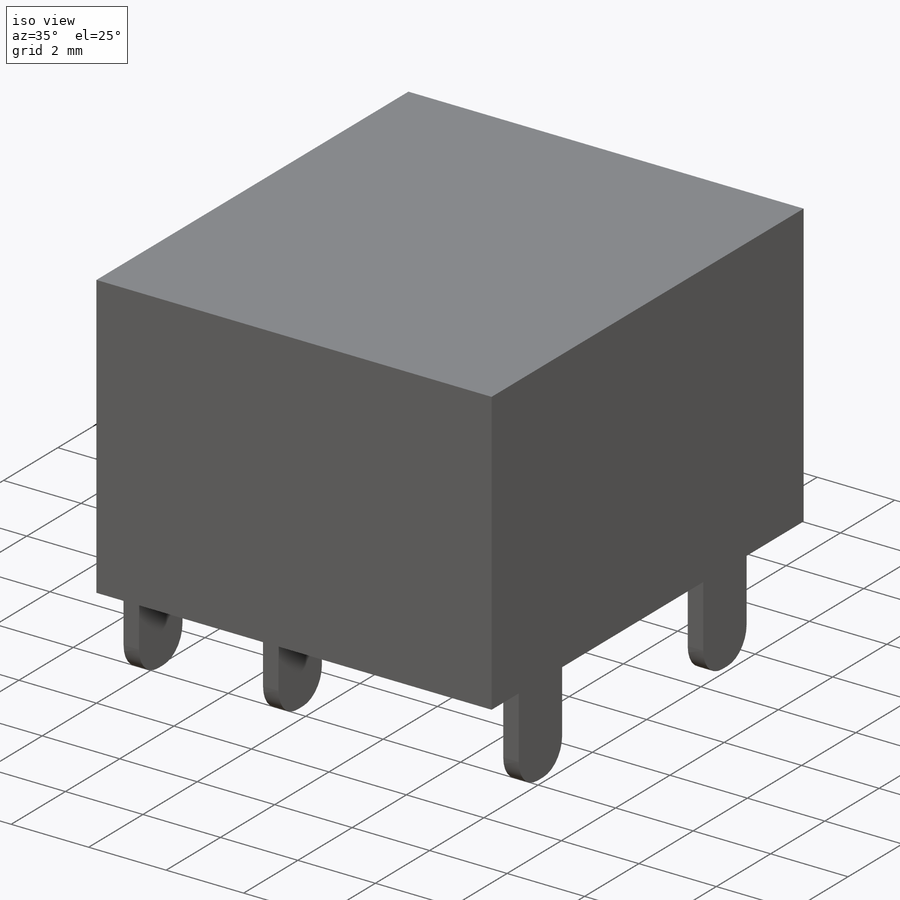
[diagram: iso view]
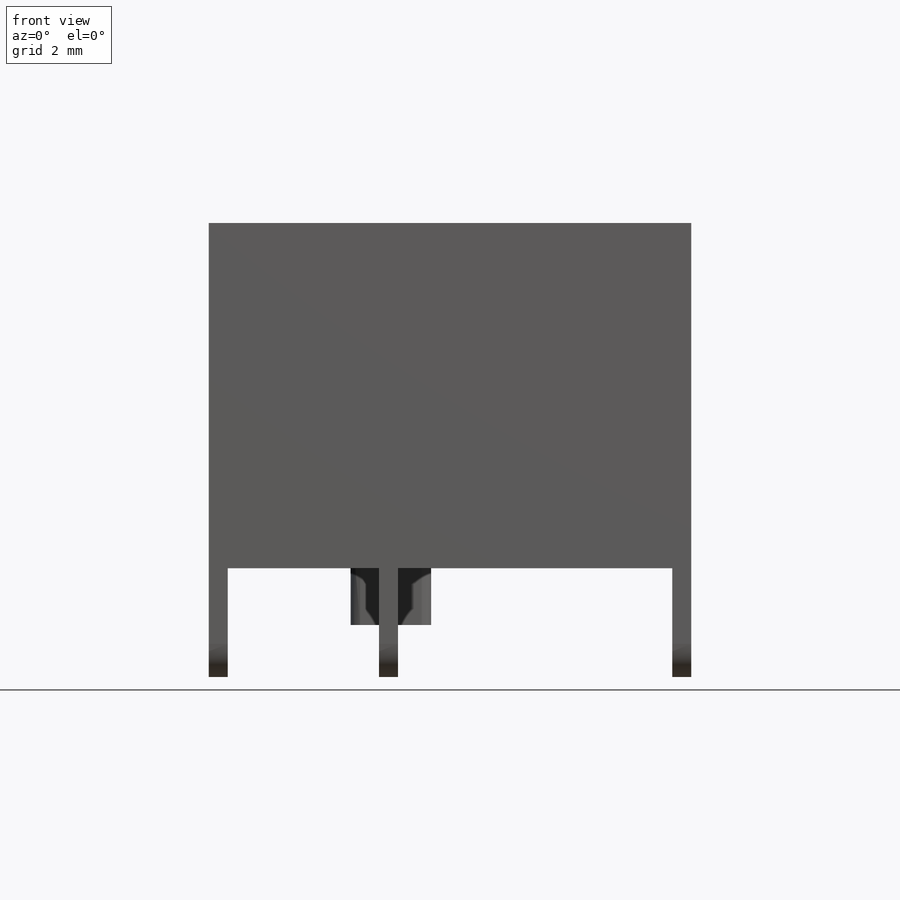
[diagram: front view]
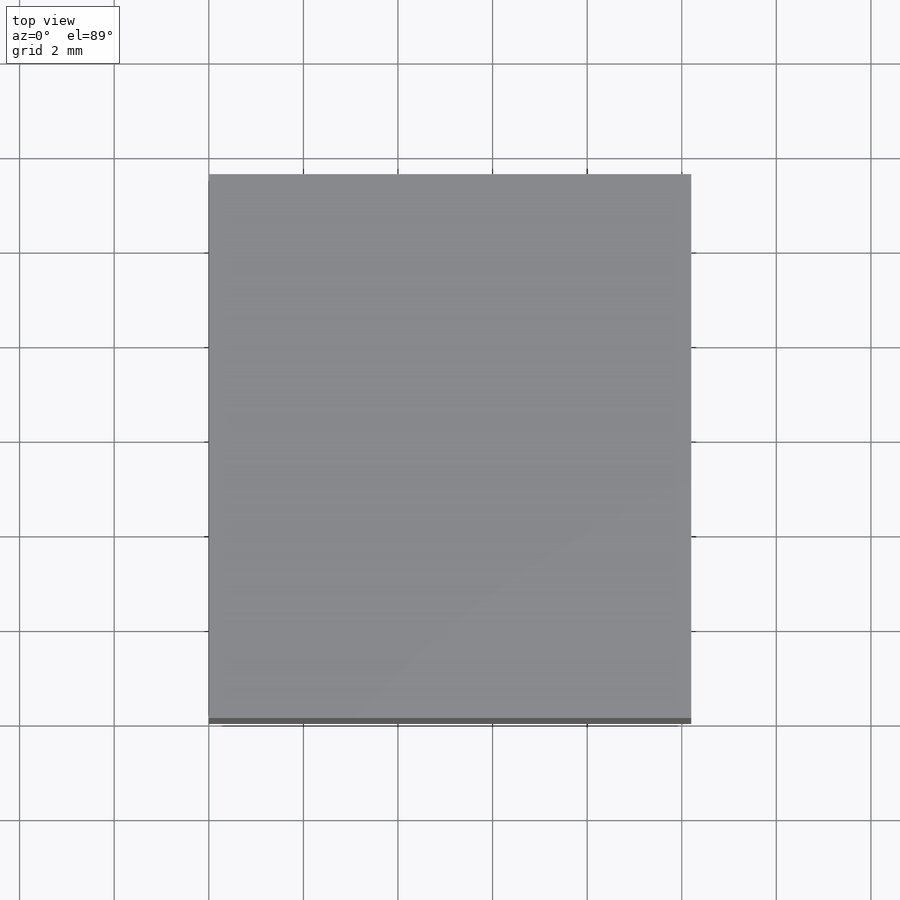
[diagram: top view]
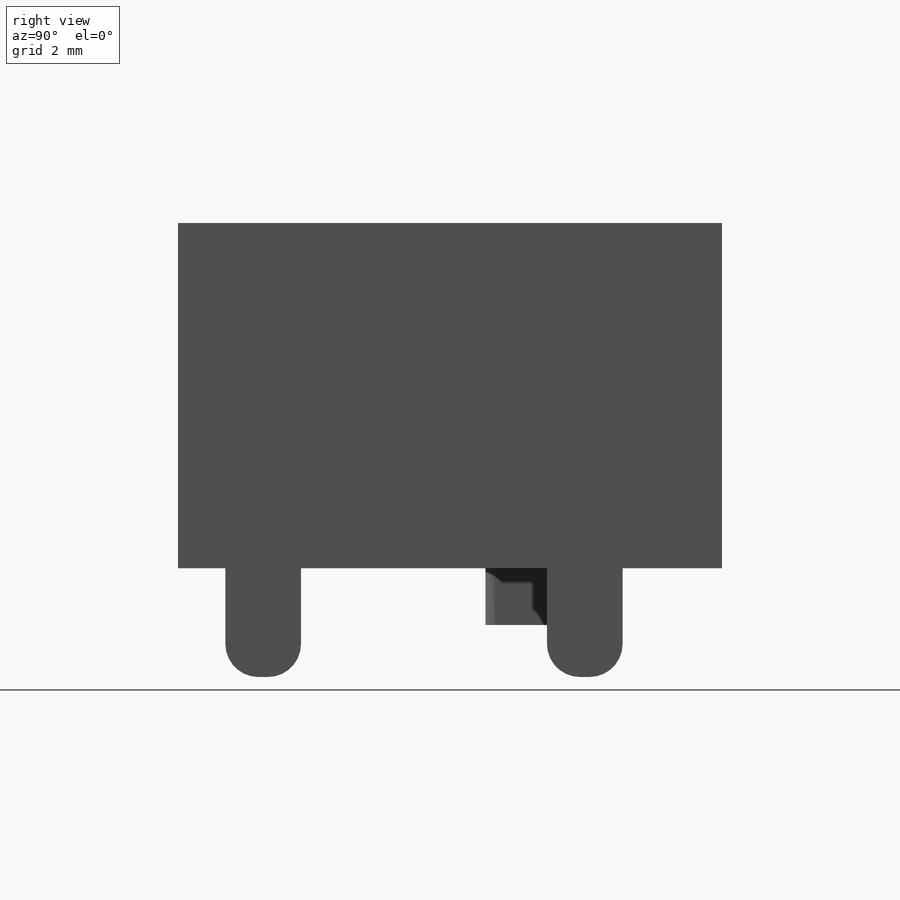
[diagram: right view]
SOLIDWORKS PART (.sldprt)
format: sldprt  version: not decoded by parser v0  size: 314,880 bytes
history: native  units: mm
features: fillet x8, sketch x4, extrude x3, material x1, cut_extrude x1 (+11 scaffold rows collapsed)
feature tree (28):
  scaffold x11  (default folders/planes/origin — collapsed)
  material  "Материал <не указан>"
  sketch  "Эскиз1"  dims[D1=11.5mm D2=7.3mm]
  extrude  "Бобышка-Вытянуть1"  Depth=10.2mm
  sketch  "Эскиз2"  dims[c1.D1=6.0mm c1.D2=6.0mm c1.D3=2.5mm c2.D2=4.0mm]
  cut_extrude  "Вырез-Вытянуть1"  Depth=8.3mm
  fillet  "Скругление1"  Radius=1.12mm
  sketch  "Эскиз3"  dims[D1=0.4mm D2=1.6mm D3=1.0mm D4=0.4mm D5=1.6mm D6=2.1mm D7=3.2mm D8=0.4mm D9=1.6mm D10=~1.014746mm]
  extrude  "Бобышка-Вытянуть2"  Depth=2.3mm
  fillet  "Скругление2"  Radius=0.7mm
  fillet  "Скругление3"  Radius=0.7mm
  fillet  "Скругление4"  Radius=0.7mm
  fillet  "Скругление5"  Radius=0.7mm
  fillet  "Скругление6"  Radius=0.7mm
  sketch  "Эскиз4"  dims[D1=1.7mm D2=3.3mm D3=3.0mm]
  extrude  "Бобышка-Вытянуть3"  Depth=1.2mm
  fillet  "Скругление7"  Radius=0.2mm
  fillet  "Скругление8"  Radius=0.2mm
decode coverage: 16 of 16 modeling features carry decoded parameters
note: ~ marks probable driven/reference dimensions
note: suppression state not decoded; provenance and decode notes live in map.json
